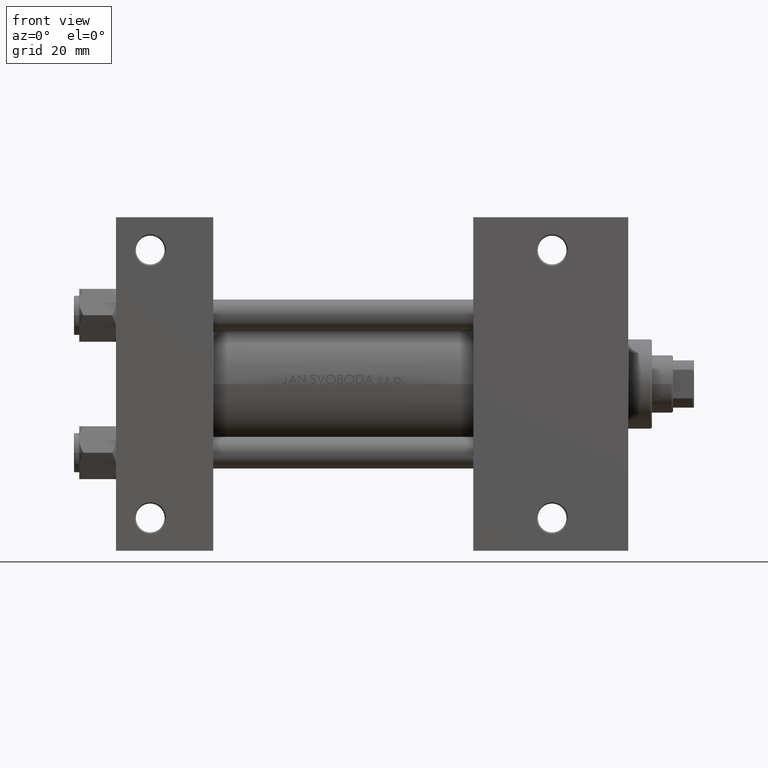
[diagram: clean part render]
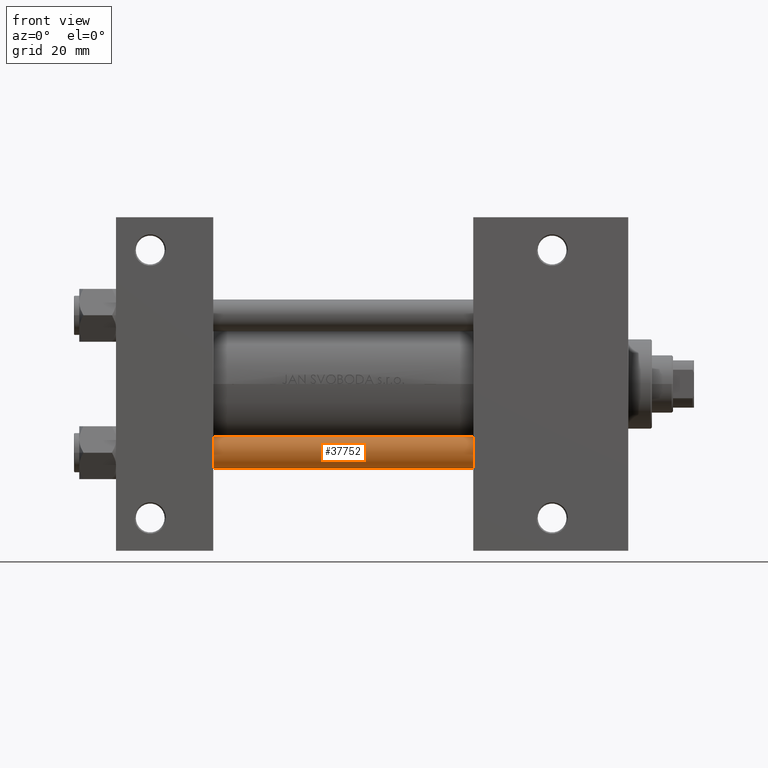
[diagram: same view with one face highlighted and labeled with its STEP entity id]
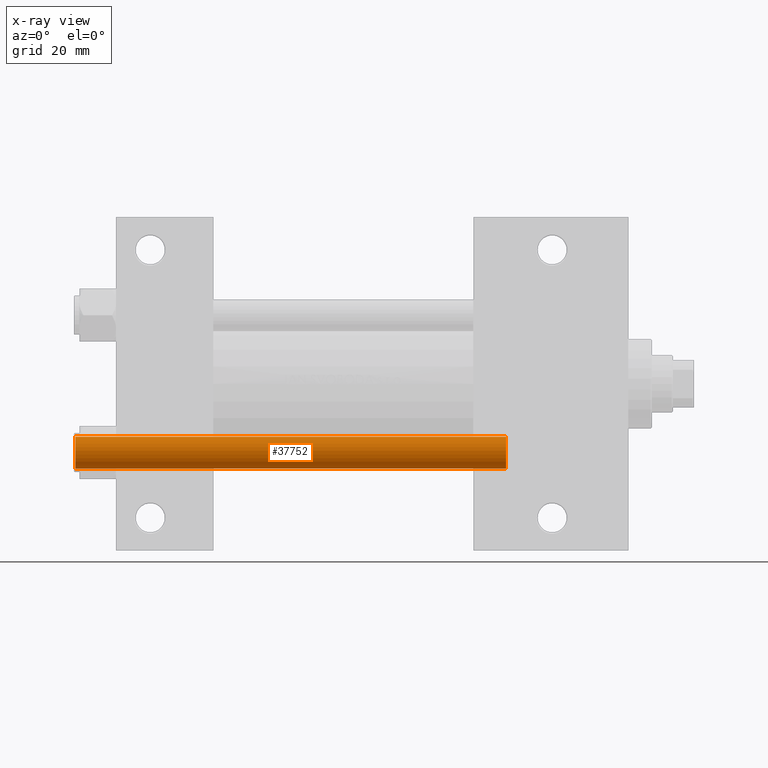
[diagram: x-ray of the same camera — body ghosted, the highlighted face saturated]
A machine part, front view. The second image highlights one B-rep face of the part: STEP entity #37752.
The next image is the same camera in x-ray: the body ghosted, the highlighted face saturated — about 0% of this face is hidden behind the body in this view.
In plain terms, the highlighted cylindrical surface (edge-blend (fillet) strip) has radius 6 mm, axis along (-1, 0, 0).
Its self-contained STEP definition (entity closure, byte-faithful):
#477 = VERTEX_POINT ( 'NONE', #18823 ) ;
#3034 = VERTEX_POINT ( 'NONE', #21220 ) ;
#3050 = DIRECTION ( 'NONE',  ( -0.000000000000000000, -0.000000000000000000, -1.000000000000000000 ) ) ;
#3513 = CARTESIAN_POINT ( 'NONE',  ( 6.000000000000000888, 7.347880794884120722E-16, 165.0000000000000000 ) ) ;
#4144 = VECTOR ( 'NONE', #46382, 1000.000000000000000 ) ;
#5258 = CARTESIAN_POINT ( 'NONE',  ( 6.000000000000000888, 7.347880794884120722E-16, 164.5000000000000000 ) ) ;
#6469 = AXIS2_PLACEMENT_3D ( 'NONE', #42370, #12246, #16215 ) ;
#7008 = LINE ( 'NONE', #3513, #37819 ) ;
#7450 = DIRECTION ( 'NONE',  ( 1.000000000000000000, 0.000000000000000000, 0.000000000000000000 ) ) ;
#8775 = LINE ( 'NONE', #42632, #4144 ) ;
#10526 = CYLINDRICAL_SURFACE ( 'NONE', #17342, 6.000000000000000888 ) ;
#12246 = DIRECTION ( 'NONE',  ( 0.000000000000000000, 0.000000000000000000, -1.000000000000000000 ) ) ;
#16215 = DIRECTION ( 'NONE',  ( 1.000000000000000000, 0.000000000000000000, 0.000000000000000000 ) ) ;
#17342 = AXIS2_PLACEMENT_3D ( 'NONE', #25700, #3050, #18242 ) ;
#17750 = FACE_OUTER_BOUND ( 'NONE', #18791, .T. ) ;
#18218 = EDGE_CURVE ( 'NONE', #3034, #20870, #8775, .T. ) ;
#18242 = DIRECTION ( 'NONE',  ( -1.000000000000000000, 0.000000000000000000, 0.000000000000000000 ) ) ;
#18791 = EDGE_LOOP ( 'NONE', ( #42925, #34287, #47531, #46745 ) ) ;
#18823 = CARTESIAN_POINT ( 'NONE',  ( 6.000000000000000888, 7.347880794884120722E-16, 0.5000000000000281997 ) ) ;
#20646 = EDGE_CURVE ( 'NONE', #477, #20870, #40789, .T. ) ;
#20870 = VERTEX_POINT ( 'NONE', #33524 ) ;
#21220 = CARTESIAN_POINT ( 'NONE',  ( -6.000000000000000888, 0.000000000000000000, 164.5000000000000000 ) ) ;
#21689 = AXIS2_PLACEMENT_3D ( 'NONE', #29852, #30097, #7450 ) ;
#22913 = DIRECTION ( 'NONE',  ( -0.000000000000000000, -0.000000000000000000, -1.000000000000000000 ) ) ;
#25700 = CARTESIAN_POINT ( 'NONE',  ( 0.000000000000000000, 0.000000000000000000, 165.0000000000000000 ) ) ;
#29852 = CARTESIAN_POINT ( 'NONE',  ( 0.000000000000000000, 0.000000000000000000, 0.5000000000000281997 ) ) ;
#30097 = DIRECTION ( 'NONE',  ( -0.000000000000000000, -0.000000000000000000, 1.000000000000000000 ) ) ;
#30863 = VERTEX_POINT ( 'NONE', #5258 ) ;
#31789 = EDGE_CURVE ( 'NONE', #30863, #477, #7008, .T. ) ;
#33524 = CARTESIAN_POINT ( 'NONE',  ( -6.000000000000000888, 0.000000000000000000, 0.5000000000000281997 ) ) ;
#34287 = ORIENTED_EDGE ( 'NONE', *, *, #31789, .T. ) ;
#36665 = CIRCLE ( 'NONE', #6469, 6.000000000000000888 ) ;
#37752 = ADVANCED_FACE ( 'NONE', ( #17750 ), #10526, .T. ) ;
#37819 = VECTOR ( 'NONE', #22913, 1000.000000000000000 ) ;
#40789 = CIRCLE ( 'NONE', #21689, 6.000000000000000888 ) ;
#42370 = CARTESIAN_POINT ( 'NONE',  ( 0.000000000000000000, 0.000000000000000000, 164.5000000000000000 ) ) ;
#42632 = CARTESIAN_POINT ( 'NONE',  ( -6.000000000000000888, 0.000000000000000000, 165.0000000000000000 ) ) ;
#42925 = ORIENTED_EDGE ( 'NONE', *, *, #48060, .T. ) ;
#46382 = DIRECTION ( 'NONE',  ( -0.000000000000000000, -0.000000000000000000, -1.000000000000000000 ) ) ;
#46745 = ORIENTED_EDGE ( 'NONE', *, *, #18218, .F. ) ;
#47531 = ORIENTED_EDGE ( 'NONE', *, *, #20646, .T. ) ;
#48060 = EDGE_CURVE ( 'NONE', #3034, #30863, #36665, .T. ) ;